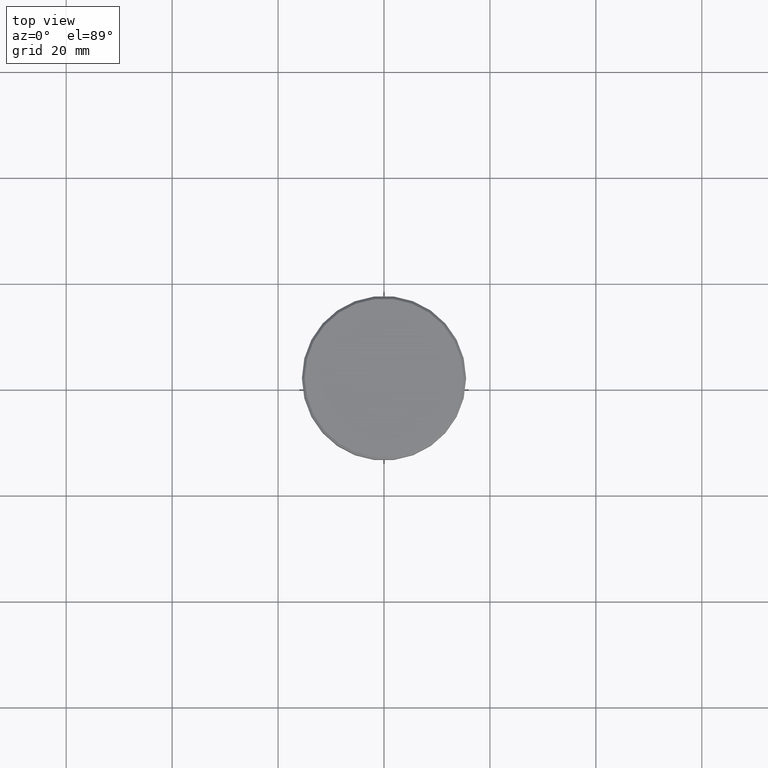
[diagram: clean part render]
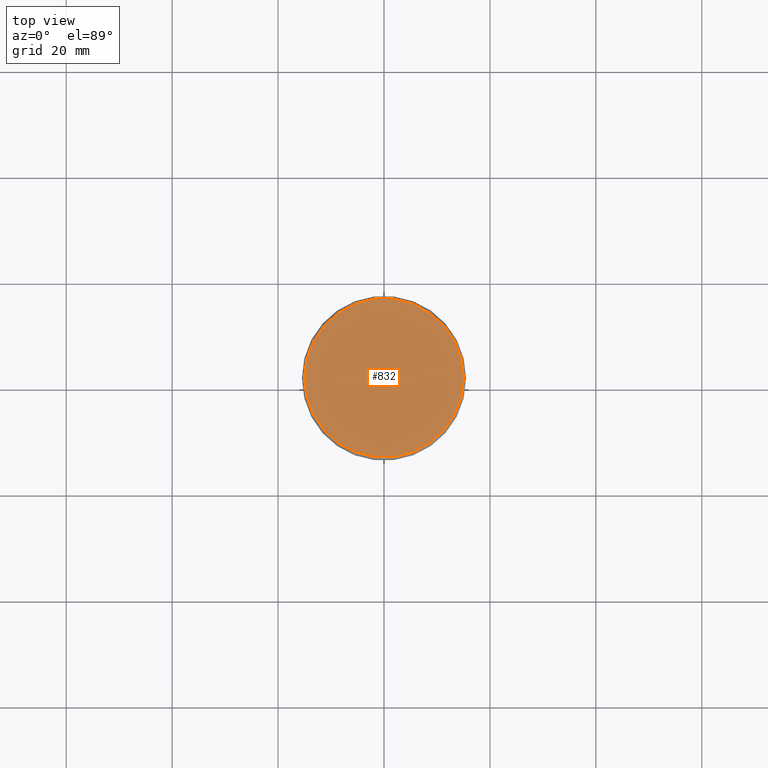
[diagram: same view with one face highlighted and labeled with its STEP entity id]
A machine part, top view. The second image highlights one B-rep face of the part: STEP entity #832.
In plain terms, the highlighted planar face has unit normal (0, -0, 1).
Its self-contained STEP definition (entity closure, byte-faithful):
#144 = EDGE_CURVE ( 'NONE', #286, #1158, #888, .T. ) ;
#213 = DIRECTION ( 'NONE',  ( 0.000000000000000000, -0.000000000000000000, 1.000000000000000000 ) ) ;
#259 = EDGE_CURVE ( 'NONE', #1158, #286, #334, .T. ) ;
#286 = VERTEX_POINT ( 'NONE', #969 ) ;
#334 = CIRCLE ( 'NONE', #415, 15.00000000000002665 ) ;
#342 = ORIENTED_EDGE ( 'NONE', *, *, #144, .T. ) ;
#378 = AXIS2_PLACEMENT_3D ( 'NONE', #940, #861, #1032 ) ;
#387 = DIRECTION ( 'NONE',  ( 1.000000000000000000, 0.000000000000000000, 0.000000000000000000 ) ) ;
#415 = AXIS2_PLACEMENT_3D ( 'NONE', #1085, #448, #387 ) ;
#448 = DIRECTION ( 'NONE',  ( -0.000000000000000000, -0.000000000000000000, 1.000000000000000000 ) ) ;
#564 = DIRECTION ( 'NONE',  ( 1.000000000000000000, 0.000000000000000000, 0.000000000000000000 ) ) ;
#645 = CARTESIAN_POINT ( 'NONE',  ( 0.000000000000000000, 0.000000000000000000, 0.000000000000000000 ) ) ;
#654 = PLANE ( 'NONE',  #663 ) ;
#663 = AXIS2_PLACEMENT_3D ( 'NONE', #645, #213, #564 ) ;
#734 = ORIENTED_EDGE ( 'NONE', *, *, #259, .T. ) ;
#743 = EDGE_LOOP ( 'NONE', ( #342, #734 ) ) ;
#745 = FACE_OUTER_BOUND ( 'NONE', #743, .T. ) ;
#832 = ADVANCED_FACE ( 'NONE', ( #745 ), #654, .T. ) ;
#861 = DIRECTION ( 'NONE',  ( -0.000000000000000000, -0.000000000000000000, 1.000000000000000000 ) ) ;
#888 = CIRCLE ( 'NONE', #378, 15.00000000000002665 ) ;
#940 = CARTESIAN_POINT ( 'NONE',  ( 0.000000000000000000, 0.000000000000000000, 0.000000000000000000 ) ) ;
#969 = CARTESIAN_POINT ( 'NONE',  ( -15.00000000000002665, 0.000000000000000000, 0.000000000000000000 ) ) ;
#1032 = DIRECTION ( 'NONE',  ( 1.000000000000000000, 0.000000000000000000, 0.000000000000000000 ) ) ;
#1040 = CARTESIAN_POINT ( 'NONE',  ( 15.00000000000002665, 1.867586368699715348E-15, 0.000000000000000000 ) ) ;
#1085 = CARTESIAN_POINT ( 'NONE',  ( 0.000000000000000000, 0.000000000000000000, 0.000000000000000000 ) ) ;
#1158 = VERTEX_POINT ( 'NONE', #1040 ) ;